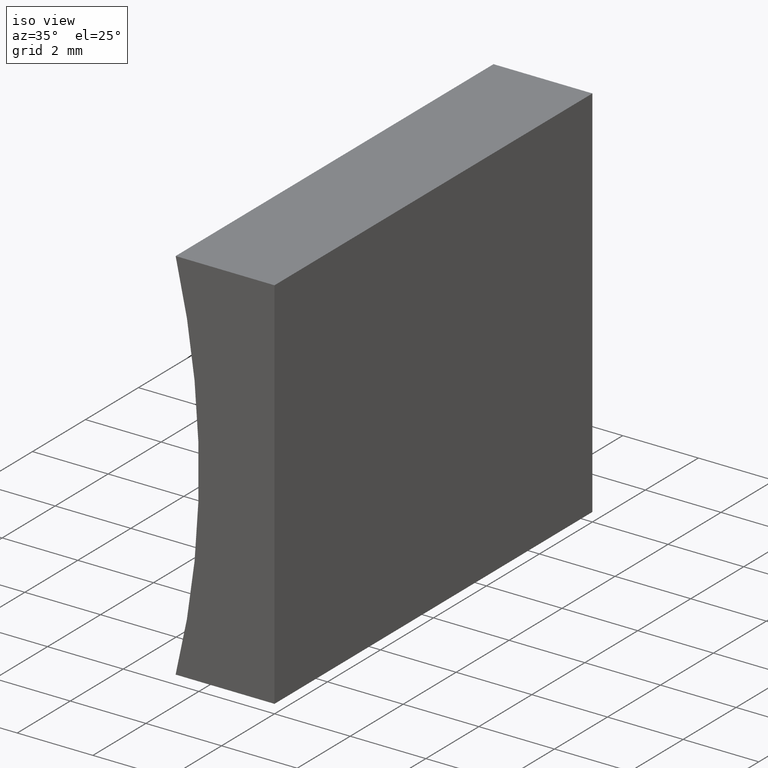
[diagram: clean part render]
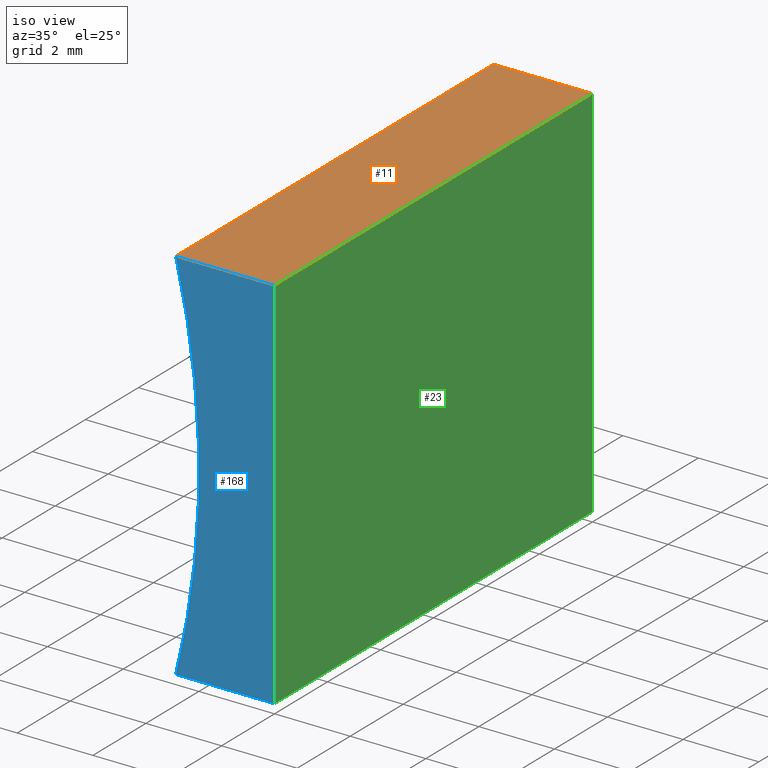
[diagram: same view with three faces highlighted in distinct colors, each labeled with its STEP entity id]
A machine part, iso view with three faces highlighted in distinct colors.
Their STEP definitions:

[orange] entity #11 — the highlighted planar face has unit normal (0, 0, -1).
#1 = VECTOR ( 'NONE', #90, 1000.000000000000000 ) ;
#3 = EDGE_CURVE ( 'NONE', #128, #109, #169, .T. ) ;
#4 = CARTESIAN_POINT ( 'NONE',  ( 6.123233995736766300E-016, 12.00000000000000000, 10.00000000000000000 ) ) ;
#6 = LINE ( 'NONE', #54, #62 ) ;
#11 = ADVANCED_FACE ( 'NONE', ( #166 ), #204, .F. ) ;
#15 = CARTESIAN_POINT ( 'NONE',  ( 6.123233995736766300E-016, 12.00000000000000000, 10.00000000000000000 ) ) ;
#26 = VECTOR ( 'NONE', #181, 1000.000000000000000 ) ;
#28 = CARTESIAN_POINT ( 'NONE',  ( 6.123233995736766300E-016, 0.0000000000000000000, 10.00000000000000000 ) ) ;
#43 = ORIENTED_EDGE ( 'NONE', *, *, #188, .F. ) ;
#46 = LINE ( 'NONE', #57, #26 ) ;
#47 = DIRECTION ( 'NONE',  ( 1.000000000000000000, -0.0000000000000000000, -0.0000000000000000000 ) ) ;
#48 = DIRECTION ( 'NONE',  ( 1.000000000000000000, -0.0000000000000000000, -0.0000000000000000000 ) ) ;
#51 = LINE ( 'NONE', #164, #1 ) ;
#54 = CARTESIAN_POINT ( 'NONE',  ( 6.123233995736766300E-016, 12.00000000000000000, 10.00000000000000000 ) ) ;
#57 = CARTESIAN_POINT ( 'NONE',  ( 6.123233995736766300E-016, 12.00000000000000000, 10.00000000000000000 ) ) ;
#62 = VECTOR ( 'NONE', #47, 1000.000000000000000 ) ;
#70 = DIRECTION ( 'NONE',  ( -1.000000000000000000, 0.0000000000000000000, -0.0000000000000000000 ) ) ;
#71 = VECTOR ( 'NONE', #48, 1000.000000000000000 ) ;
#74 = EDGE_CURVE ( 'NONE', #186, #128, #51, .T. ) ;
#82 = ORIENTED_EDGE ( 'NONE', *, *, #3, .T. ) ;
#90 = DIRECTION ( 'NONE',  ( -0.0000000000000000000, -1.000000000000000000, -0.0000000000000000000 ) ) ;
#102 = DIRECTION ( 'NONE',  ( 0.0000000000000000000, 0.0000000000000000000, -1.000000000000000000 ) ) ;
#103 = EDGE_LOOP ( 'NONE', ( #82, #157, #43, #133 ) ) ;
#109 = VERTEX_POINT ( 'NONE', #28 ) ;
#114 = EDGE_CURVE ( 'NONE', #173, #109, #46, .T. ) ;
#118 = CARTESIAN_POINT ( 'NONE',  ( 6.123233995736766300E-016, 0.0000000000000000000, 10.00000000000000000 ) ) ;
#127 = CARTESIAN_POINT ( 'NONE',  ( -2.613550388770809400, 12.00000000000000000, 10.00000000000000000 ) ) ;
#128 = VERTEX_POINT ( 'NONE', #147 ) ;
#133 = ORIENTED_EDGE ( 'NONE', *, *, #74, .T. ) ;
#147 = CARTESIAN_POINT ( 'NONE',  ( -2.613550388770809400, 0.0000000000000000000, 10.00000000000000000 ) ) ;
#157 = ORIENTED_EDGE ( 'NONE', *, *, #114, .F. ) ;
#164 = CARTESIAN_POINT ( 'NONE',  ( -2.613550388770809400, 12.00000000000000000, 10.00000000000000000 ) ) ;
#166 = FACE_OUTER_BOUND ( 'NONE', #103, .T. ) ;
#169 = LINE ( 'NONE', #118, #71 ) ;
#173 = VERTEX_POINT ( 'NONE', #4 ) ;
#181 = DIRECTION ( 'NONE',  ( -0.0000000000000000000, -1.000000000000000000, -0.0000000000000000000 ) ) ;
#186 = VERTEX_POINT ( 'NONE', #127 ) ;
#188 = EDGE_CURVE ( 'NONE', #186, #173, #6, .T. ) ;
#191 = AXIS2_PLACEMENT_3D ( 'NONE', #15, #102, #70 ) ;
#204 = PLANE ( 'NONE',  #191 ) ;

[blue] entity #168 — the highlighted planar face has unit normal (0, 1, 0).
#3 = EDGE_CURVE ( 'NONE', #128, #109, #169, .T. ) ;
#5 = DIRECTION ( 'NONE',  ( -0.0000000000000000000, -1.000000000000000000, -0.0000000000000000000 ) ) ;
#9 = EDGE_LOOP ( 'NONE', ( #35, #116, #108, #13 ) ) ;
#13 = ORIENTED_EDGE ( 'NONE', *, *, #88, .F. ) ;
#28 = CARTESIAN_POINT ( 'NONE',  ( 6.123233995736766300E-016, 0.0000000000000000000, 10.00000000000000000 ) ) ;
#29 = DIRECTION ( 'NONE',  ( 0.0000000000000000000, 0.0000000000000000000, 1.000000000000000000 ) ) ;
#30 = EDGE_CURVE ( 'NONE', #64, #59, #121, .T. ) ;
#33 = DIRECTION ( 'NONE',  ( -1.000000000000000000, 0.0000000000000000000, 0.0000000000000000000 ) ) ;
#35 = ORIENTED_EDGE ( 'NONE', *, *, #30, .F. ) ;
#42 = CARTESIAN_POINT ( 'NONE',  ( 0.0000000000000000000, 0.0000000000000000000, 0.0000000000000000000 ) ) ;
#45 = DIRECTION ( 'NONE',  ( 0.0000000000000000000, 1.000000000000000000, 0.0000000000000000000 ) ) ;
#48 = DIRECTION ( 'NONE',  ( 1.000000000000000000, -0.0000000000000000000, -0.0000000000000000000 ) ) ;
#58 = EDGE_CURVE ( 'NONE', #109, #64, #85, .T. ) ;
#59 = VERTEX_POINT ( 'NONE', #196 ) ;
#61 = VECTOR ( 'NONE', #33, 1000.000000000000000 ) ;
#63 = AXIS2_PLACEMENT_3D ( 'NONE', #177, #5, #29 ) ;
#64 = VERTEX_POINT ( 'NONE', #78 ) ;
#71 = VECTOR ( 'NONE', #48, 1000.000000000000000 ) ;
#78 = CARTESIAN_POINT ( 'NONE',  ( 0.0000000000000000000, 0.0000000000000000000, 0.0000000000000000000 ) ) ;
#85 = LINE ( 'NONE', #42, #174 ) ;
#87 = FACE_OUTER_BOUND ( 'NONE', #9, .T. ) ;
#88 = EDGE_CURVE ( 'NONE', #59, #128, #134, .T. ) ;
#91 = CARTESIAN_POINT ( 'NONE',  ( 0.0000000000000000000, 0.0000000000000000000, 0.0000000000000000000 ) ) ;
#100 = AXIS2_PLACEMENT_3D ( 'NONE', #180, #45, #125 ) ;
#108 = ORIENTED_EDGE ( 'NONE', *, *, #3, .F. ) ;
#109 = VERTEX_POINT ( 'NONE', #28 ) ;
#116 = ORIENTED_EDGE ( 'NONE', *, *, #58, .F. ) ;
#118 = CARTESIAN_POINT ( 'NONE',  ( 6.123233995736766300E-016, 0.0000000000000000000, 10.00000000000000000 ) ) ;
#121 = LINE ( 'NONE', #91, #61 ) ;
#125 = DIRECTION ( 'NONE',  ( 0.0000000000000000000, -0.0000000000000000000, 1.000000000000000000 ) ) ;
#128 = VERTEX_POINT ( 'NONE', #147 ) ;
#134 = CIRCLE ( 'NONE', #63, 20.68000000000000000 ) ;
#147 = CARTESIAN_POINT ( 'NONE',  ( -2.613550388770809400, 0.0000000000000000000, 10.00000000000000000 ) ) ;
#168 = ADVANCED_FACE ( 'NONE', ( #87 ), #176, .F. ) ;
#169 = LINE ( 'NONE', #118, #71 ) ;
#174 = VECTOR ( 'NONE', #178, 1000.000000000000000 ) ;
#176 = PLANE ( 'NONE',  #100 ) ;
#177 = CARTESIAN_POINT ( 'NONE',  ( -22.68000000000000000, 0.0000000000000000000, 5.000000000000001800 ) ) ;
#178 = DIRECTION ( 'NONE',  ( -6.123233995736766000E-017, -0.0000000000000000000, -1.000000000000000000 ) ) ;
#180 = CARTESIAN_POINT ( 'NONE',  ( -22.68000000000000000, 0.0000000000000000000, 5.000000000000001800 ) ) ;
#196 = CARTESIAN_POINT ( 'NONE',  ( -2.613550388770813400, 0.0000000000000000000, 0.0000000000000000000 ) ) ;

[green] entity #23 — the highlighted planar face has unit normal (-1, 0, 0).
#4 = CARTESIAN_POINT ( 'NONE',  ( 6.123233995736766300E-016, 12.00000000000000000, 10.00000000000000000 ) ) ;
#12 = VECTOR ( 'NONE', #73, 1000.000000000000000 ) ;
#17 = CARTESIAN_POINT ( 'NONE',  ( 0.0000000000000000000, 12.00000000000000000, 0.0000000000000000000 ) ) ;
#18 = VECTOR ( 'NONE', #194, 1000.000000000000000 ) ;
#23 = ADVANCED_FACE ( 'NONE', ( #37 ), #110, .F. ) ;
#26 = VECTOR ( 'NONE', #181, 1000.000000000000000 ) ;
#28 = CARTESIAN_POINT ( 'NONE',  ( 6.123233995736766300E-016, 0.0000000000000000000, 10.00000000000000000 ) ) ;
#32 = ORIENTED_EDGE ( 'NONE', *, *, #114, .T. ) ;
#34 = CARTESIAN_POINT ( 'NONE',  ( 0.0000000000000000000, 12.00000000000000000, 0.0000000000000000000 ) ) ;
#37 = FACE_OUTER_BOUND ( 'NONE', #179, .T. ) ;
#38 = ORIENTED_EDGE ( 'NONE', *, *, #58, .T. ) ;
#42 = CARTESIAN_POINT ( 'NONE',  ( 0.0000000000000000000, 0.0000000000000000000, 0.0000000000000000000 ) ) ;
#46 = LINE ( 'NONE', #57, #26 ) ;
#52 = EDGE_CURVE ( 'NONE', #111, #64, #197, .T. ) ;
#57 = CARTESIAN_POINT ( 'NONE',  ( 6.123233995736766300E-016, 12.00000000000000000, 10.00000000000000000 ) ) ;
#58 = EDGE_CURVE ( 'NONE', #109, #64, #85, .T. ) ;
#64 = VERTEX_POINT ( 'NONE', #78 ) ;
#65 = LINE ( 'NONE', #34, #12 ) ;
#66 = ORIENTED_EDGE ( 'NONE', *, *, #136, .F. ) ;
#73 = DIRECTION ( 'NONE',  ( -6.123233995736766000E-017, -0.0000000000000000000, -1.000000000000000000 ) ) ;
#75 = CARTESIAN_POINT ( 'NONE',  ( 0.0000000000000000000, 12.00000000000000000, 0.0000000000000000000 ) ) ;
#78 = CARTESIAN_POINT ( 'NONE',  ( 0.0000000000000000000, 0.0000000000000000000, 0.0000000000000000000 ) ) ;
#81 = DIRECTION ( 'NONE',  ( -1.000000000000000000, 0.0000000000000000000, 6.123233995736766000E-017 ) ) ;
#85 = LINE ( 'NONE', #42, #174 ) ;
#89 = ORIENTED_EDGE ( 'NONE', *, *, #52, .F. ) ;
#94 = DIRECTION ( 'NONE',  ( 6.123233995736766000E-017, 0.0000000000000000000, 1.000000000000000000 ) ) ;
#109 = VERTEX_POINT ( 'NONE', #28 ) ;
#110 = PLANE ( 'NONE',  #140 ) ;
#111 = VERTEX_POINT ( 'NONE', #75 ) ;
#114 = EDGE_CURVE ( 'NONE', #173, #109, #46, .T. ) ;
#136 = EDGE_CURVE ( 'NONE', #173, #111, #65, .T. ) ;
#140 = AXIS2_PLACEMENT_3D ( 'NONE', #162, #81, #94 ) ;
#162 = CARTESIAN_POINT ( 'NONE',  ( 0.0000000000000000000, 12.00000000000000000, 0.0000000000000000000 ) ) ;
#173 = VERTEX_POINT ( 'NONE', #4 ) ;
#174 = VECTOR ( 'NONE', #178, 1000.000000000000000 ) ;
#178 = DIRECTION ( 'NONE',  ( -6.123233995736766000E-017, -0.0000000000000000000, -1.000000000000000000 ) ) ;
#179 = EDGE_LOOP ( 'NONE', ( #38, #89, #66, #32 ) ) ;
#181 = DIRECTION ( 'NONE',  ( -0.0000000000000000000, -1.000000000000000000, -0.0000000000000000000 ) ) ;
#194 = DIRECTION ( 'NONE',  ( -0.0000000000000000000, -1.000000000000000000, -0.0000000000000000000 ) ) ;
#197 = LINE ( 'NONE', #17, #18 ) ;